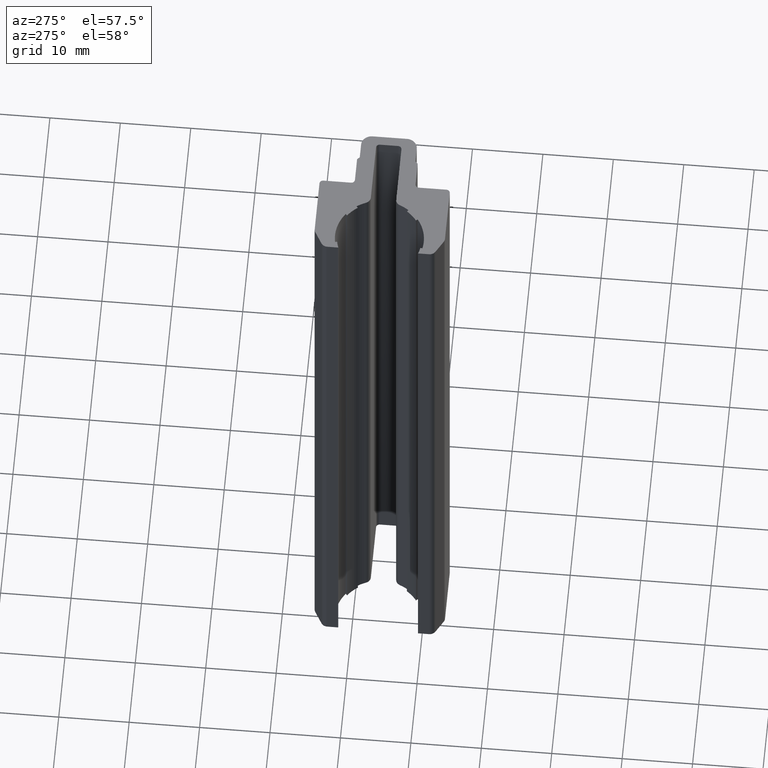
[diagram: clean part render]
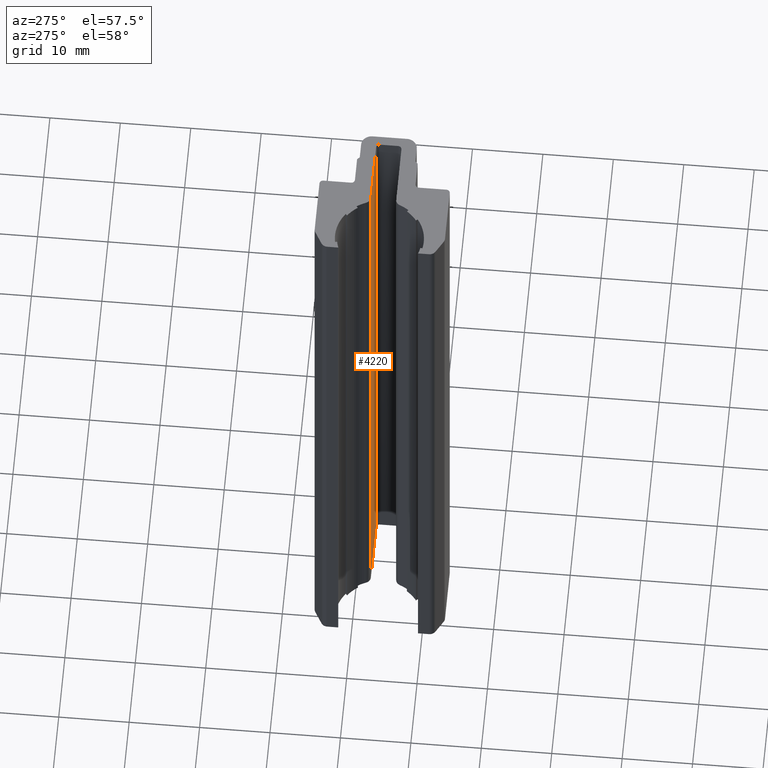
[diagram: same view with one face highlighted and labeled with its STEP entity id]
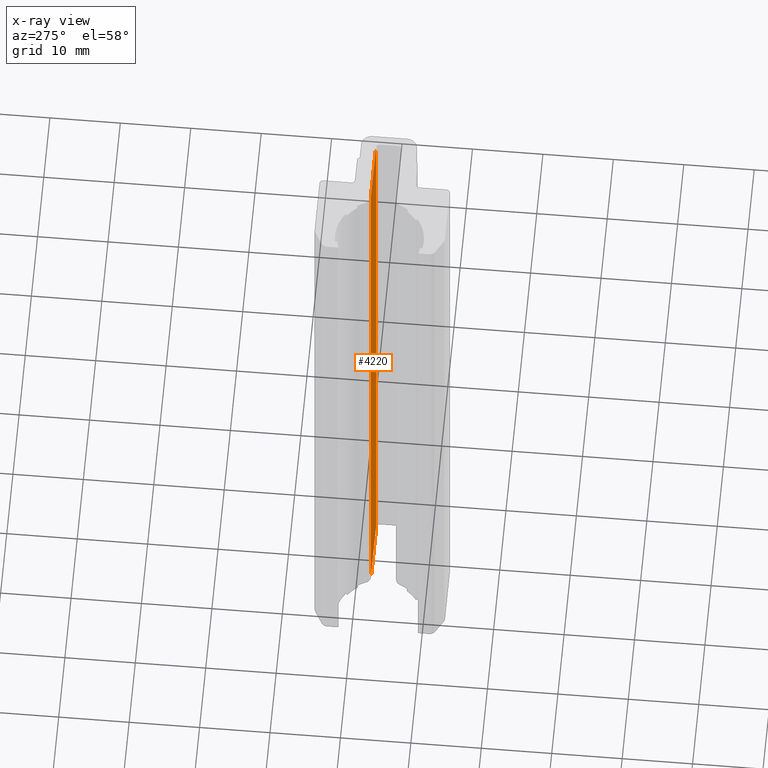
[diagram: x-ray of the same camera — body ghosted, the highlighted face saturated]
A machine part, auxiliary view. The second image highlights one B-rep face of the part: STEP entity #4220.
The next image is the same camera in x-ray: the body ghosted, the highlighted face saturated — about 0% of this face is hidden behind the body in this view.
In plain terms, the highlighted planar face has unit normal (0, -1, 0).
Its self-contained STEP definition (entity closure, byte-faithful):
#214=FACE_OUTER_BOUND('',#416,.T.);
#416=EDGE_LOOP('',(#3415,#3416,#3417,#3418));
#422=LINE('',#5463,#1022);
#1015=LINE('',#6650,#1615);
#1017=LINE('',#6653,#1617);
#1018=LINE('',#6654,#1618);
#1022=VECTOR('',#4455,10.);
#1615=VECTOR('',#5444,10.);
#1617=VECTOR('',#5448,10.);
#1618=VECTOR('',#5449,10.);
#1619=VERTEX_POINT('',#5456);
#1622=VERTEX_POINT('',#5461);
#2017=VERTEX_POINT('',#6647);
#2018=VERTEX_POINT('',#6649);
#2022=EDGE_CURVE('',#1622,#1619,#422,.T.);
#2615=EDGE_CURVE('',#2018,#2017,#1015,.T.);
#2617=EDGE_CURVE('',#2017,#1619,#1017,.T.);
#2618=EDGE_CURVE('',#1622,#2018,#1018,.T.);
#3415=ORIENTED_EDGE('',*,*,#2617,.T.);
#3416=ORIENTED_EDGE('',*,*,#2022,.F.);
#3417=ORIENTED_EDGE('',*,*,#2618,.T.);
#3418=ORIENTED_EDGE('',*,*,#2615,.T.);
#4018=PLANE('',#4445);
#4220=ADVANCED_FACE('',(#214),#4018,.T.);
#4445=AXIS2_PLACEMENT_3D('',#6652,#5446,#5447);
#4455=DIRECTION('',(0.,0.,1.));
#5444=DIRECTION('',(0.,0.,1.));
#5446=DIRECTION('center_axis',(0.,-1.,0.));
#5447=DIRECTION('ref_axis',(0.,0.,-1.));
#5448=DIRECTION('',(-1.,0.,0.));
#5449=DIRECTION('',(1.,0.,0.));
#5456=CARTESIAN_POINT('',(1156.17871291649,1717.97209828338,100.));
#5461=CARTESIAN_POINT('',(1156.17871291649,1717.97209828338,0.));
#5463=CARTESIAN_POINT('',(1156.17871291649,1717.97209828338,0.));
#6647=CARTESIAN_POINT('',(1164.63763705691,1717.97209828338,100.));
#6649=CARTESIAN_POINT('',(1164.63763705691,1717.97209828338,0.));
#6650=CARTESIAN_POINT('',(1164.63763705691,1717.97209828338,0.));
#6652=CARTESIAN_POINT('Origin',(1164.63763705691,1717.97209828338,0.));
#6653=CARTESIAN_POINT('',(1156.17871291649,1717.97209828338,100.));
#6654=CARTESIAN_POINT('',(1156.17871291649,1717.97209828338,0.));